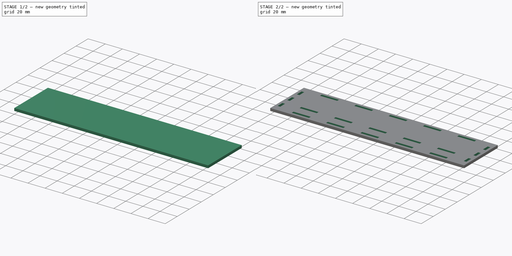
[diagram: build sequence overview — one tinted view per stage of 2, left to right]
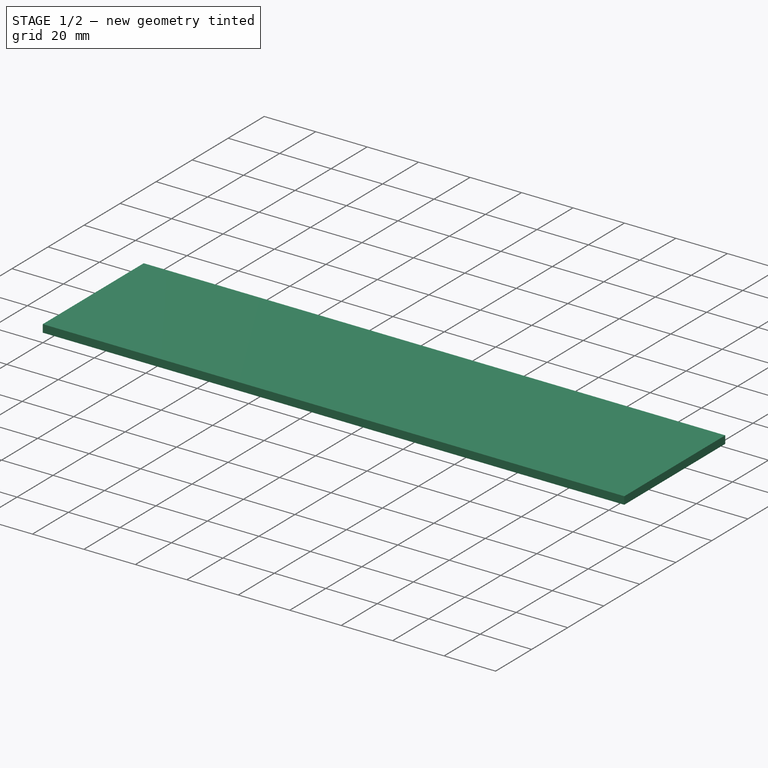
[diagram: stage 1 of 2 — iso view after this stage's code; geometry added in this stage tinted green]
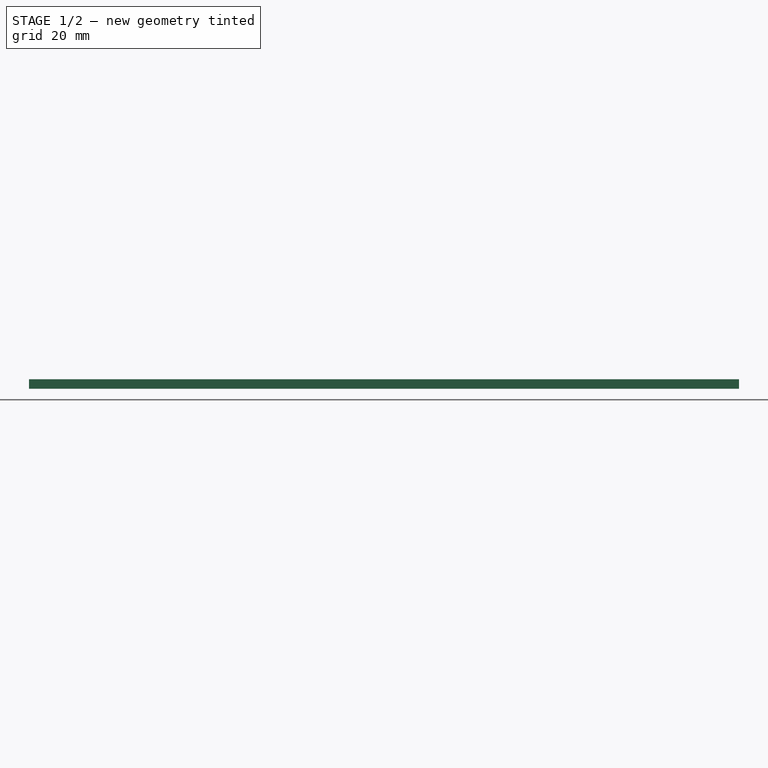
[diagram: stage 1 of 2 — front view after this stage's code; geometry added in this stage tinted green]
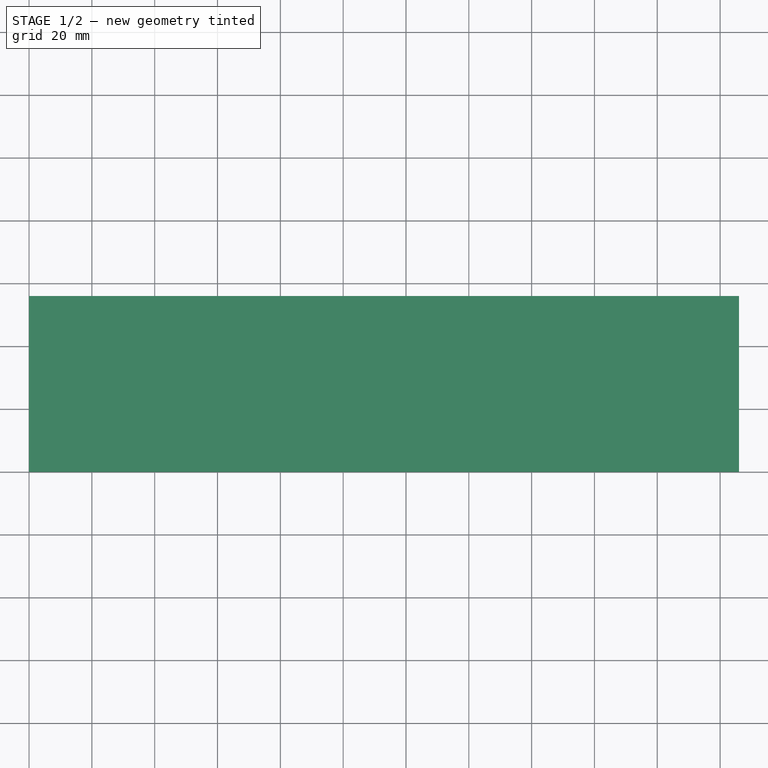
[diagram: stage 1 of 2 — top view after this stage's code; geometry added in this stage tinted green]
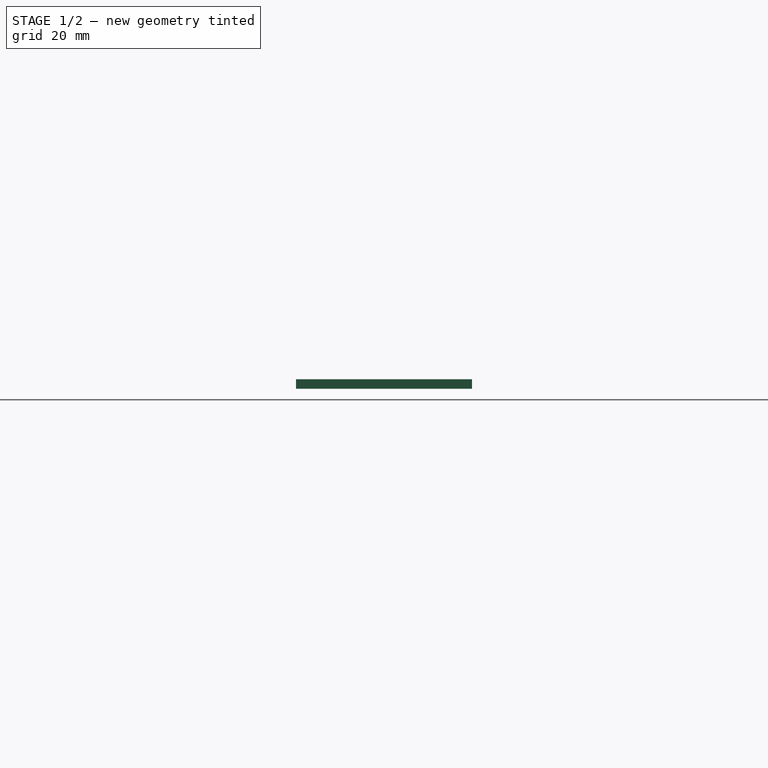
[diagram: stage 1 of 2 — right view after this stage's code; geometry added in this stage tinted green]
FCSTD DOCUMENT  (FreeCAD 0.19R24366 (Git))
Label: mdo-bottom
License: All rights reserved
LicenseURL: http://en.wikipedia.org/wiki/All_rights_reserved
objects: Sketcher::SketchObject×2, PartDesign::Pad×1, PartDesign::Pocket×1, PartDesign::Body×1, TechDraw::DrawSVGTemplate×1, TechDraw::DrawViewPart×1, TechDraw::DrawPage×1
note: 7 computed .brp shape members not serialized (recipe doc carries the construction recipe); baked Part::Feature solids carry a one-line shape summary decoded from their .brp

FEATURE [Sketcher::SketchObject] Sketch
  FullyConstrained = true
  MapMode = 5
  Support = -> [XY_Plane]
  sketch-geometry (4):
    g0: LineSegment StartX=0 StartY=0 StartZ=0 EndX=226 EndY=0 EndZ=0
    g1: LineSegment StartX=226 StartY=0 StartZ=0 EndX=226 EndY=56 EndZ=0
    g2: LineSegment StartX=226 StartY=56 StartZ=0 EndX=0 EndY=56 EndZ=0
    g3: LineSegment StartX=0 StartY=56 StartZ=0 EndX=0 EndY=0 EndZ=0
  constraints (11):
    c: Coincident(g0,g1)
    c: Coincident(g1,g2)
    c: Coincident(g2,g3)
    c: Coincident(g3,g0)
    c: Horizontal(g0)
    c: Horizontal(g2)
    c: Vertical(g1)
    c: Vertical(g3)
    c: Coincident(g0,g-1)
    c: DistanceX(g0,g0) = 226
    c: DistanceY(g1,g1) = 56
FEATURE [PartDesign::Pad] Pad
  Direction = (1,1,1)
  Length = 3
  Length2 = 100
  Profile = -> Sketch
  Type = 0
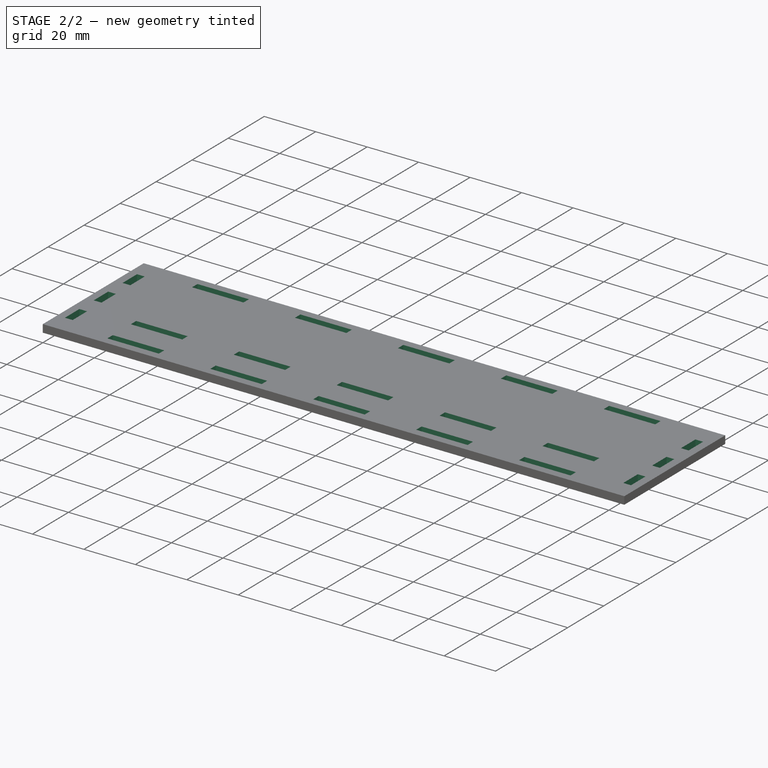
[diagram: stage 2 of 2 — iso view after this stage's code; geometry added in this stage tinted green]
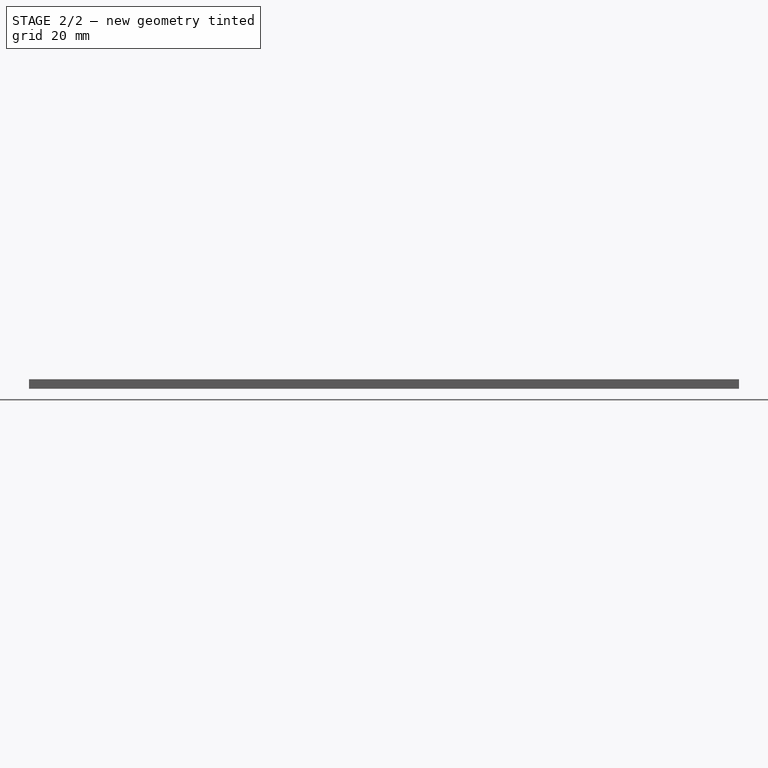
[diagram: stage 2 of 2 — front view after this stage's code; geometry added in this stage tinted green]
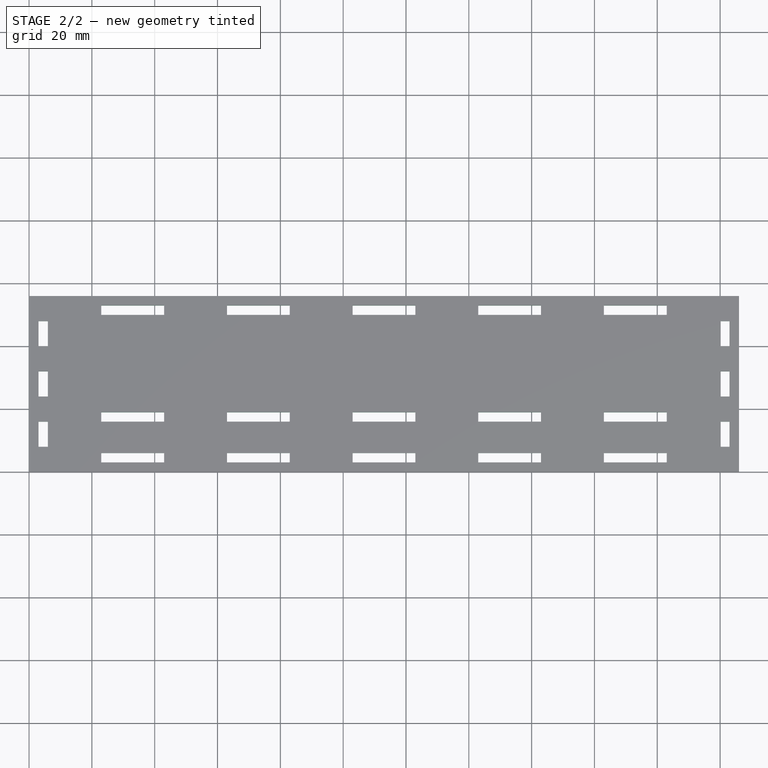
[diagram: stage 2 of 2 — top view after this stage's code; geometry added in this stage tinted green]
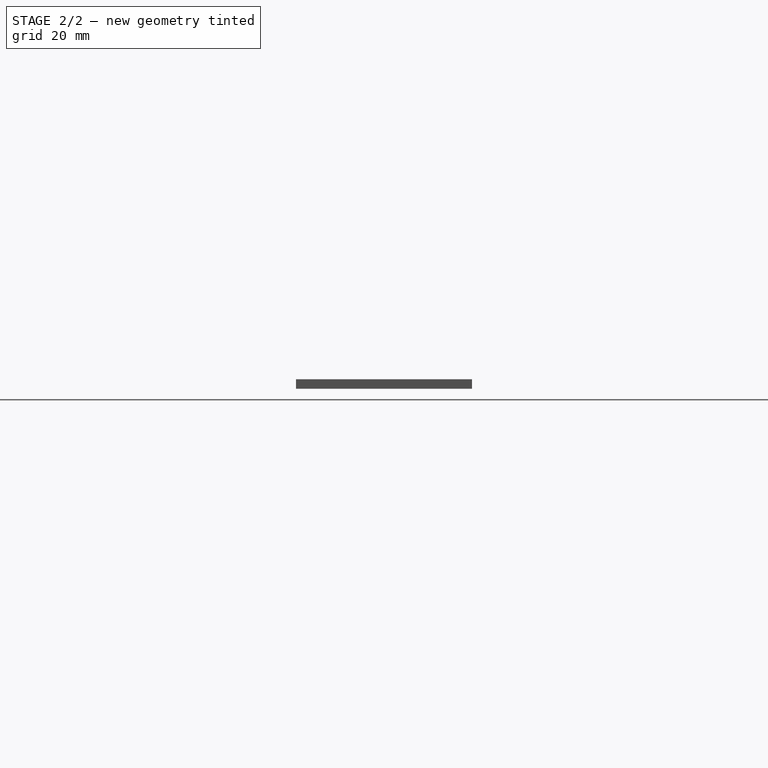
[diagram: stage 2 of 2 — right view after this stage's code; geometry added in this stage tinted green]
FEATURE [Sketcher::SketchObject] Sketch001
  FullyConstrained = true
  MapMode = 5
  Placement = pos=(0,0,3) rot=(0,0,1;0rad)
  Support = -> [Pad]
  sketch-geometry (100):
    g0: LineSegment StartX=23 StartY=6 StartZ=0 EndX=43 EndY=6 EndZ=0
    g1: LineSegment StartX=43 StartY=6 StartZ=0 EndX=43 EndY=3 EndZ=0
    g2: LineSegment StartX=43 StartY=3 StartZ=0 EndX=23 EndY=3 EndZ=0
    g3: LineSegment StartX=23 StartY=3 StartZ=0 EndX=23 EndY=6 EndZ=0
    g4: LineSegment StartX=63 StartY=6 StartZ=0 EndX=83 EndY=6 EndZ=0
    g5: LineSegment StartX=83 StartY=6 StartZ=0 EndX=83 EndY=3 EndZ=0
    g6: LineSegment StartX=83 StartY=3 StartZ=0 EndX=63 EndY=3 EndZ=0
    g7: LineSegment StartX=63 StartY=3 StartZ=0 EndX=63 EndY=6 EndZ=0
    g8: LineSegment StartX=23 StartY=6 StartZ=0 EndX=63 EndY=6 EndZ=0
    g9: LineSegment StartX=103 StartY=6 StartZ=0 EndX=123 EndY=6 EndZ=0
    g10: LineSegment StartX=123 StartY=6 StartZ=0 EndX=123 EndY=3 EndZ=0
    g11: LineSegment StartX=123 StartY=3 StartZ=0 EndX=103 EndY=3 EndZ=0
    g12: LineSegment StartX=103 StartY=3 StartZ=0 EndX=103 EndY=6 EndZ=0
    g13: LineSegment StartX=63 StartY=6 StartZ=0 EndX=103 EndY=6 EndZ=0
    g14: LineSegment StartX=143 StartY=6 StartZ=0 EndX=163 EndY=6 EndZ=0
    g15: LineSegment StartX=163 StartY=6 StartZ=0 EndX=163 EndY=3 EndZ=0
    g16: LineSegment StartX=163 StartY=3 StartZ=0 EndX=143 EndY=3 EndZ=0
    g17: LineSegment StartX=143 StartY=3 StartZ=0 EndX=143 EndY=6 EndZ=0
    g18: LineSegment StartX=103 StartY=6 StartZ=0 EndX=143 EndY=6 EndZ=0
    g19: LineSegment StartX=183 StartY=6 StartZ=0 EndX=203 EndY=6 EndZ=0
    g20: LineSegment StartX=203 StartY=6 StartZ=0 EndX=203 EndY=3 EndZ=0
    g21: LineSegment StartX=203 StartY=3 StartZ=0 EndX=183 EndY=3 EndZ=0
    g22: LineSegment StartX=183 StartY=3 StartZ=0 EndX=183 EndY=6 EndZ=0
    g23: LineSegment StartX=143 StartY=6 StartZ=0 EndX=183 EndY=6 EndZ=0
    g24: LineSegment StartX=23 StartY=19 StartZ=0 EndX=43 EndY=19 EndZ=0
    g25: LineSegment StartX=43 StartY=19 StartZ=0 EndX=43 EndY=16 EndZ=0
    g26: LineSegment StartX=43 StartY=16 StartZ=0 EndX=23 EndY=16 EndZ=0
    g27: LineSegment StartX=23 StartY=16 StartZ=0 EndX=23 EndY=19 EndZ=0
    g28: LineSegment StartX=63 StartY=19 StartZ=0 EndX=83 EndY=19 EndZ=0
    g29: LineSegment StartX=83 StartY=19 StartZ=0 EndX=83 EndY=16 EndZ=0
    g30: LineSegment StartX=83 StartY=16 StartZ=0 EndX=63 EndY=16 EndZ=0
    g31: LineSegment StartX=63 StartY=16 StartZ=0 EndX=63 EndY=19 EndZ=0
    g32: LineSegment StartX=23 StartY=19 StartZ=0 EndX=63 EndY=19 EndZ=0
    g33: LineSegment StartX=103 StartY=19 StartZ=0 EndX=123 EndY=19 EndZ=0
    g34: LineSegment StartX=123 StartY=19 StartZ=0 EndX=123 EndY=16 EndZ=0
    g35: LineSegment StartX=123 StartY=16 StartZ=0 EndX=103 EndY=16 EndZ=0
    g36: LineSegment StartX=103 StartY=16 StartZ=0 EndX=103 EndY=19 EndZ=0
    g37: LineSegment StartX=63 StartY=19 StartZ=0 EndX=103 EndY=19 EndZ=0
    g38: LineSegment StartX=143 StartY=19 StartZ=0 EndX=163 EndY=19 EndZ=0
    g39: LineSegment StartX=163 StartY=19 StartZ=0 EndX=163 EndY=16 EndZ=0
    g40: LineSegment StartX=163 StartY=16 StartZ=0 EndX=143 EndY=16 EndZ=0
    g41: LineSegment StartX=143 StartY=16 StartZ=0 EndX=143 EndY=19 EndZ=0
    g42: LineSegment StartX=103 StartY=19 StartZ=0 EndX=143 EndY=19 EndZ=0
    g43: LineSegment StartX=183 StartY=19 StartZ=0 EndX=203 EndY=19 EndZ=0
    g44: LineSegment StartX=203 StartY=19 StartZ=0 EndX=203 EndY=16 EndZ=0
    g45: LineSegment StartX=203 StartY=16 StartZ=0 EndX=183 EndY=16 EndZ=0
    g46: LineSegment StartX=183 StartY=16 StartZ=0 EndX=183 EndY=19 EndZ=0
    g47: LineSegment StartX=143 StartY=19 StartZ=0 EndX=183 EndY=19 EndZ=0
    g48: LineSegment StartX=23 StartY=53 StartZ=0 EndX=43 EndY=53 EndZ=0
    g49: LineSegment StartX=43 StartY=53 StartZ=0 EndX=43 EndY=50 EndZ=0
    g50: LineSegment StartX=43 StartY=50 StartZ=0 EndX=23 EndY=50 EndZ=0
    g51: LineSegment StartX=23 StartY=50 StartZ=0 EndX=23 EndY=53 EndZ=0
    g52: LineSegment StartX=63 StartY=53 StartZ=0 EndX=83 EndY=53 EndZ=0
    g53: LineSegment StartX=83 StartY=53 StartZ=0 EndX=83 EndY=50 EndZ=0
    g54: LineSegment StartX=83 StartY=50 StartZ=0 EndX=63 EndY=50 EndZ=0
    g55: LineSegment StartX=63 StartY=50 StartZ=0 EndX=63 EndY=53 EndZ=0
    g56: LineSegment StartX=23 StartY=53 StartZ=0 EndX=63 EndY=53 EndZ=0
    g57: LineSegment StartX=103 StartY=53 StartZ=0 EndX=123 EndY=53 EndZ=0
    g58: LineSegment StartX=123 StartY=53 StartZ=0 EndX=123 EndY=50 EndZ=0
    g59: LineSegment StartX=123 StartY=50 StartZ=0 EndX=103 EndY=50 EndZ=0
    g60: LineSegment StartX=103 StartY=50 StartZ=0 EndX=103 EndY=53 EndZ=0
    g61: LineSegment StartX=63 StartY=53 StartZ=0 EndX=103 EndY=53 EndZ=0
    g62: LineSegment StartX=143 StartY=53 StartZ=0 EndX=163 EndY=53 EndZ=0
    g63: LineSegment StartX=163 StartY=53 StartZ=0 EndX=163 EndY=50 EndZ=0
    g64: LineSegment StartX=163 StartY=50 StartZ=0 EndX=143 EndY=50 EndZ=0
    g65: LineSegment StartX=143 StartY=50 StartZ=0 EndX=143 EndY=53 EndZ=0
    g66: LineSegment StartX=103 StartY=53 StartZ=0 EndX=143 EndY=53 EndZ=0
    g67: LineSegment StartX=183 StartY=53 StartZ=0 EndX=203 EndY=53 EndZ=0
    g68: LineSegment StartX=203 StartY=53 StartZ=0 EndX=203 EndY=50 EndZ=0
    g69: LineSegment StartX=203 StartY=50 StartZ=0 EndX=183 EndY=50 EndZ=0
    g70: LineSegment StartX=183 StartY=50 StartZ=0 EndX=183 EndY=53 EndZ=0
    g71: LineSegment StartX=143 StartY=53 StartZ=0 EndX=183 EndY=53 EndZ=0
    g72: LineSegment StartX=3 StartY=16 StartZ=0 EndX=6 EndY=16 EndZ=0
    g73: LineSegment StartX=6 StartY=16 StartZ=0 EndX=6 EndY=8 EndZ=0
    g74: LineSegment StartX=6 StartY=8 StartZ=0 EndX=3 EndY=8 EndZ=0
    g75: LineSegment StartX=3 StartY=8 StartZ=0 EndX=3 EndY=16 EndZ=0
    g76: LineSegment StartX=3 StartY=32 StartZ=0 EndX=6 EndY=32 EndZ=0
    g77: LineSegment StartX=6 StartY=32 StartZ=0 EndX=6 EndY=24 EndZ=0
    g78: LineSegment StartX=6 StartY=24 StartZ=0 EndX=3 EndY=24 EndZ=0
    g79: LineSegment StartX=3 StartY=24 StartZ=0 EndX=3 EndY=32 EndZ=0
    g80: LineSegment StartX=3 StartY=16 StartZ=0 EndX=3 EndY=32 EndZ=0
    g81: LineSegment StartX=3 StartY=48 StartZ=0 EndX=6 EndY=48 EndZ=0
    g82: LineSegment StartX=6 StartY=48 StartZ=0 EndX=6 EndY=40 EndZ=0
    g83: LineSegment StartX=6 StartY=40 StartZ=0 EndX=3 EndY=40 EndZ=0
    g84: LineSegment StartX=3 StartY=40 StartZ=0 EndX=3 EndY=48 EndZ=0
    g85: LineSegment StartX=3 StartY=32 StartZ=0 EndX=3 EndY=48 EndZ=0
    g86: LineSegment StartX=220 StartY=16 StartZ=0 EndX=223 EndY=16 EndZ=0
    g87: LineSegment StartX=223 StartY=16 StartZ=0 EndX=223 EndY=8 EndZ=0
    g88: LineSegment StartX=223 StartY=8 StartZ=0 EndX=220 EndY=8 EndZ=0
    g89: LineSegment StartX=220 StartY=8 StartZ=0 EndX=220 EndY=16 EndZ=0
    g90: LineSegment StartX=220 StartY=32 StartZ=0 EndX=223 EndY=32 EndZ=0
    g91: LineSegment StartX=223 StartY=32 StartZ=0 EndX=223 EndY=24 EndZ=0
    g92: LineSegment StartX=223 StartY=24 StartZ=0 EndX=220 EndY=24 EndZ=0
    g93: LineSegment StartX=220 StartY=24 StartZ=0 EndX=220 EndY=32 EndZ=0
    g94: LineSegment StartX=220 StartY=16 StartZ=0 EndX=220 EndY=32 EndZ=0
    g95: LineSegment StartX=220 StartY=48 StartZ=0 EndX=223 EndY=48 EndZ=0
    g96: LineSegment StartX=223 StartY=48 StartZ=0 EndX=223 EndY=40 EndZ=0
    g97: LineSegment StartX=223 StartY=40 StartZ=0 EndX=220 EndY=40 EndZ=0
    g98: LineSegment StartX=220 StartY=40 StartZ=0 EndX=220 EndY=48 EndZ=0
    g99: LineSegment StartX=220 StartY=32 StartZ=0 EndX=220 EndY=48 EndZ=0
  constraints (284):
    c: Coincident(g0,g1)
    c: Coincident(g1,g2)
    c: Coincident(g2,g3)
    c: Coincident(g3,g0)
    c: Horizontal(g0)
    c: Horizontal(g2)
    c: Vertical(g1)
    c: Vertical(g3)
    c: DistanceY(g1,g1) = 3
    c: DistanceX(g2,g2) = 20
    c: DistanceY(g-1,g2) = 3
    c: DistanceX(g-1,g2) = 23
    c: Coincident(g4,g5)
    c: Coincident(g5,g6)
    c: Coincident(g6,g7)
    c: Coincident(g7,g4)
    c: Horizontal(g4)
    c: Horizontal(g6)
    c: Vertical(g5)
    c: Vertical(g7)
    c: Equal(g1,g5) = 3
    c: Equal(g2,g6) = 20
    c: Coincident(g0,g8)
    c: Coincident(g4,g8)
    c: Distance(g8) = 40
    c: Angle(g8) = 0
    c: Coincident(g9,g10)
    c: Coincident(g10,g11)
    c: Coincident(g11,g12)
    c: Coincident(g12,g9)
    c: Horizontal(g9)
    c: Horizontal(g11)
    c: Vertical(g10)
    c: Vertical(g12)
    c: Equal(g1,g10) = 3
    c: Equal(g2,g11) = 20
    c: Coincident(g4,g13)
    c: Coincident(g9,g13)
    c: Equal(g8,g13)
    c: Parallel(g13,g8)
    c: Coincident(g14,g15)
    c: Coincident(g15,g16)
    c: Coincident(g16,g17)
    c: Coincident(g17,g14)
    c: Horizontal(g14)
    c: Horizontal(g16)
    c: Vertical(g15)
    c: Vertical(g17)
    c: Equal(g1,g15) = 3
    c: Equal(g2,g16) = 20
    c: Coincident(g9,g18)
    c: Coincident(g14,g18)
    c: Equal(g8,g18)
    c: Parallel(g18,g8)
    c: Coincident(g19,g20)
    c: Coincident(g20,g21)
    c: Coincident(g21,g22)
    c: Coincident(g22,g19)
    c: Horizontal(g19)
    c: Horizontal(g21)
    c: Vertical(g20)
    c: Vertical(g22)
    c: Equal(g1,g20) = 3
    c: Equal(g2,g21) = 20
    c: Coincident(g14,g23)
    c: Coincident(g19,g23)
    c: Equal(g8,g23)
    c: Parallel(g23,g8)
    c: Coincident(g24,g25)
    c: Coincident(g25,g26)
    c: Coincident(g26,g27)
    c: Coincident(g27,g24)
    c: Horizontal(g24)
    c: Horizontal(g26)
    c: Vertical(g25)
    c: Vertical(g27)
    c: Equal(g1,g25) = 3
    c: Equal(g2,g26) = 20
    c: Coincident(g28,g29)
    c: Coincident(g29,g30)
    c: Coincident(g30,g31)
    c: Coincident(g31,g28)
    c: Horizontal(g28)
    c: Horizontal(g30)
    c: Vertical(g29)
    c: Vertical(g31)
    c: Equal(g25,g29) = 3
    c: Equal(g26,g30) = 20
    c: Coincident(g24,g32)
    c: Coincident(g28,g32)
    c: Equal(g8,g32) = 40
    c: Parallel(g8,g32)
    c: Coincident(g33,g34)
    c: Coincident(g34,g35)
    c: Coincident(g35,g36)
    c: Coincident(g36,g33)
    c: Horizontal(g33)
    c: Horizontal(g35)
    c: Vertical(g34)
    c: Vertical(g36)
    c: Equal(g25,g34) = 3
    c: Equal(g26,g35) = 20
    c: Coincident(g28,g37)
    c: Coincident(g33,g37)
    c: Equal(g32,g37)
    c: Parallel(g37,g32)
    c: Coincident(g38,g39)
    c: Coincident(g39,g40)
    c: Coincident(g40,g41)
    c: Coincident(g41,g38)
    c: Horizontal(g38)
    c: Horizontal(g40)
    c: Vertical(g39)
    c: Vertical(g41)
    c: Equal(g25,g39) = 3
    c: Equal(g26,g40) = 20
    c: Coincident(g33,g42)
    c: Coincident(g38,g42)
    c: Equal(g32,g42)
    c: Parallel(g42,g32)
    c: Coincident(g43,g44)
    c: Coincident(g44,g45)
    c: Coincident(g45,g46)
    c: Coincident(g46,g43)
    c: Horizontal(g43)
    c: Horizontal(g45)
    c: Vertical(g44)
    c: Vertical(g46)
    c: Equal(g25,g44) = 3
    c: Equal(g26,g45) = 20
    c: Coincident(g38,g47)
    c: Coincident(g43,g47)
    c: Equal(g32,g47)
    c: Parallel(g47,g32)
    c: DistanceX(g26,g0) = 0
    c: DistanceY(g0,g26) = 10
    c: Coincident(g48,g49)
    c: Coincident(g49,g50)
    c: Coincident(g50,g51)
    c: Coincident(g51,g48)
    c: Horizontal(g48)
    c: Horizontal(g50)
    c: Vertical(g49)
    c: Vertical(g51)
    c: Equal(g1,g49) = 3
    c: Equal(g2,g50) = 20
    c: Coincident(g52,g53)
    c: Coincident(g53,g54)
    c: Coincident(g54,g55)
    c: Coincident(g55,g52)
    c: Horizontal(g52)
    c: Horizontal(g54)
    c: Vertical(g53)
    c: Vertical(g55)
    c: Equal(g49,g53) = 3
    c: Equal(g50,g54) = 20
    c: Coincident(g48,g56)
    c: Coincident(g52,g56)
    c: Equal(g8,g56) = 40
    c: Parallel(g8,g56)
    c: Coincident(g57,g58)
    c: Coincident(g58,g59)
    c: Coincident(g59,g60)
    c: Coincident(g60,g57)
    c: Horizontal(g57)
    c: Horizontal(g59)
    c: Vertical(g58)
    c: Vertical(g60)
    c: Equal(g49,g58) = 3
    c: Equal(g50,g59) = 20
    c: Coincident(g52,g61)
    c: Coincident(g57,g61)
    c: Equal(g56,g61)
    c: Parallel(g61,g56)
    c: Coincident(g62,g63)
    c: Coincident(g63,g64)
    c: Coincident(g64,g65)
    c: Coincident(g65,g62)
    c: Horizontal(g62)
    c: Horizontal(g64)
    c: Vertical(g63)
    c: Vertical(g65)
    c: Equal(g49,g63) = 3
    c: Equal(g50,g64) = 20
    c: Coincident(g57,g66)
    c: Coincident(g62,g66)
    c: Equal(g56,g66)
    c: Parallel(g66,g56)
    c: Coincident(g67,g68)
    c: Coincident(g68,g69)
    c: Coincident(g69,g70)
    c: Coincident(g70,g67)
    c: Horizontal(g67)
    c: Horizontal(g69)
    c: Vertical(g68)
    c: Vertical(g70)
    c: Equal(g49,g68) = 3
    c: Equal(g50,g69) = 20
    c: Coincident(g62,g71)
    c: Coincident(g67,g71)
    c: Equal(g56,g71)
    c: Parallel(g71,g56)
    c: DistanceX(g0,g50) = 0
    c: DistanceY(g0,g50) = 44
    c: Coincident(g72,g73)
    c: Coincident(g73,g74)
    c: Coincident(g74,g75)
    c: Coincident(g75,g72)
    c: Horizontal(g72)
    c: Horizontal(g74)
    c: Vertical(g73)
    c: Vertical(g75)
    c: DistanceX(g72,g72) = 3
    c: DistanceX(g-1,g74) = 3
    c: DistanceY(g73,g73) = 8
    c: DistanceY(g-1,g74) = 8
    c: Coincident(g76,g77)
    c: Coincident(g77,g78)
    c: Coincident(g78,g79)
    c: Coincident(g79,g76)
    c: Horizontal(g76)
    c: Horizontal(g78)
    c: Vertical(g77)
    c: Vertical(g79)
    c: Equal(g72,g76) = 3
    c: Equal(g73,g77) = 8
    c: Coincident(g72,g80)
    c: Coincident(g76,g80)
    c: Distance(g80) = 16
    c: Angle(g80) = 1.5708
    c: Coincident(g81,g82)
    c: Coincident(g82,g83)
    c: Coincident(g83,g84)
    c: Coincident(g84,g81)
    c: Horizontal(g81)
    c: Horizontal(g83)
    c: Vertical(g82)
    c: Vertical(g84)
    c: Equal(g72,g81) = 3
    c: Equal(g73,g82) = 8
    c: Coincident(g76,g85)
    c: Coincident(g81,g85)
    c: Equal(g80,g85)
    c: Parallel(g85,g80)
    c: Coincident(g86,g87)
    c: Coincident(g87,g88)
    c: Coincident(g88,g89)
    c: Coincident(g89,g86)
    c: Horizontal(g86)
    c: Horizontal(g88)
    c: Vertical(g87)
    c: Vertical(g89)
    c: Equal(g72,g86) = 3
    c: Equal(g73,g87) = 8
    c: Coincident(g90,g91)
    c: Coincident(g91,g92)
    c: Coincident(g92,g93)
    c: Coincident(g93,g90)
    c: Horizontal(g90)
    c: Horizontal(g92)
    c: Vertical(g91)
    c: Vertical(g93)
    c: Equal(g86,g90) = 3
    c: Equal(g87,g91) = 8
    c: Coincident(g86,g94)
    c: Coincident(g90,g94)
    c: Equal(g80,g94) = 16
    c: Parallel(g80,g94) = 1.5708
    c: Coincident(g95,g96)
    c: Coincident(g96,g97)
    c: Coincident(g97,g98)
    c: Coincident(g98,g95)
    c: Horizontal(g95)
    c: Horizontal(g97)
    c: Vertical(g96)
    c: Vertical(g98)
    c: Equal(g86,g95) = 3
    c: Equal(g87,g96) = 8
    c: Coincident(g90,g99)
    c: Coincident(g95,g99)
    c: Equal(g94,g99)
    c: Parallel(g99,g94)
    c: DistanceY(g88,g74) = 0
    c: DistanceX(g74,g87) = 220
FEATURE [PartDesign::Pocket] Pocket
  BaseFeature = -> Pad
  Length = 5
  Length2 = 100
  Profile = -> Sketch001
  Type = 0
FEATURE [PartDesign::Body] Body
  Group = -> [Sketch,Pad,Sketch001,Pocket]
  Origin = -> Origin
  Tip = -> Pocket
FEATURE [TechDraw::DrawSVGTemplate] Template
  EditableTexts = AUTHOR_NAME=AUTHOR NAME; DN=DN; DRAWING_TITLE=DRAWING TITLE; FC-DATE=DD/MM/YYYY; FC-REV=REV A; FC-SC=SCALE; FC-SH=X / Y; FC-SI=A2; FreeCAD_DRAWING=FreeCAD DRAWING; PN=PN
  Height = 420
  Orientation = 1
  Width = 594
FEATURE [TechDraw::DrawViewPart] View
  CoarseView = false
  Direction = (0,0,1)
  Focus = 100
  HardHidden = false
  IsoCount = 0
  IsoHidden = false
  IsoVisible = false
  LockPosition = false
  Perspective = false
  Rotation = 0
  ScaleType = 0
  SeamHidden = false
  SeamVisible = true
  SmoothHidden = false
  SmoothVisible = true
  Source = -> [Body]
  X = 297
  XDirection = (1,0,0)
  Y = 210
FEATURE [TechDraw::DrawPage] Page
  KeepUpdated = true
  NextBalloonIndex = 1
  ProjectionType = 0
  Template = -> Template
  Views = -> [View]
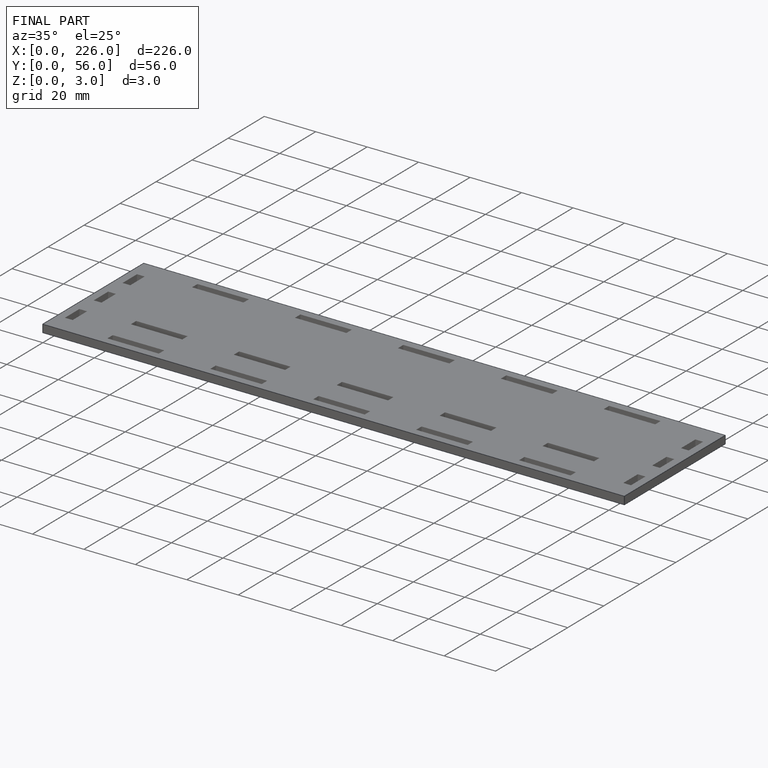
[diagram: finished part — iso view with bounding-box wireframe]
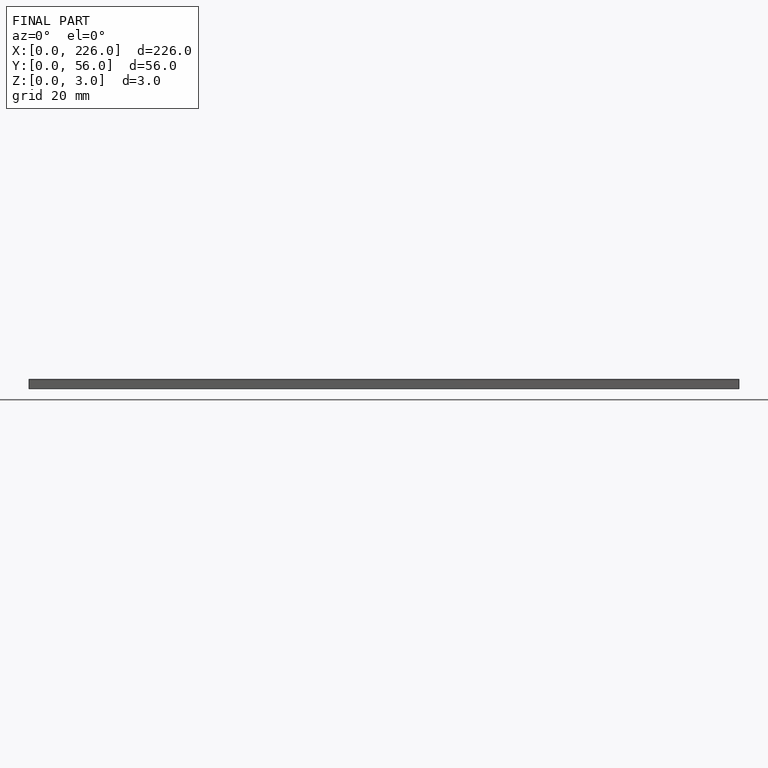
[diagram: finished part — front view with bounding-box wireframe]
